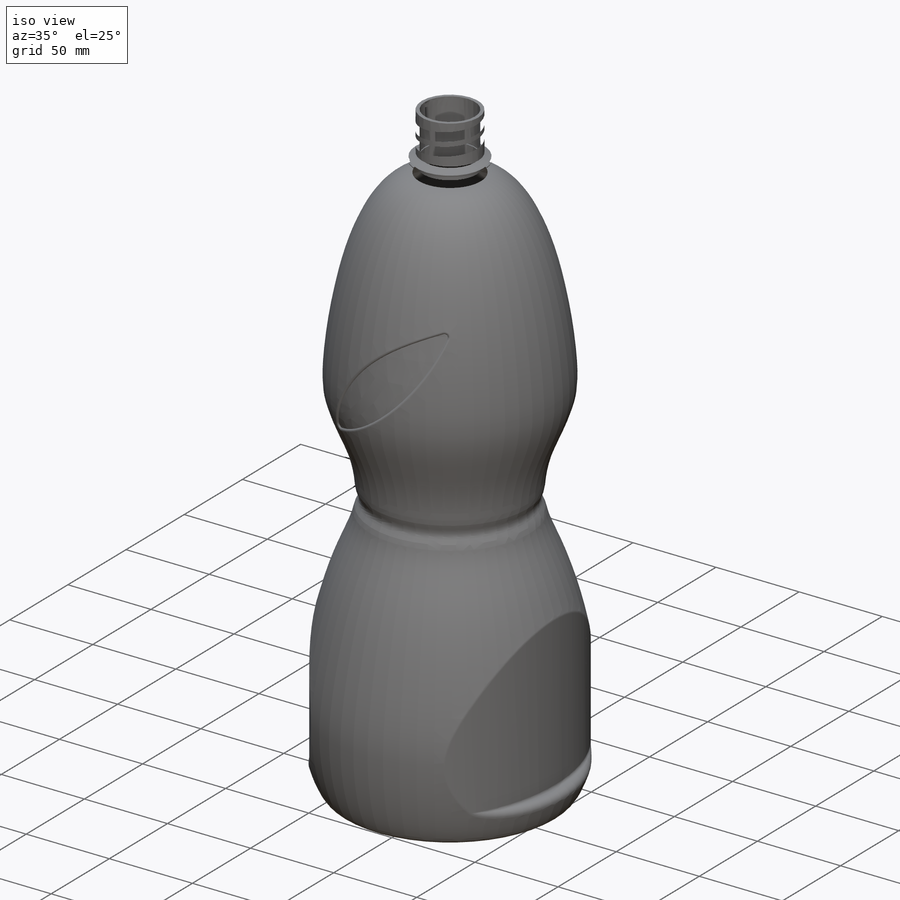
[diagram: iso view]
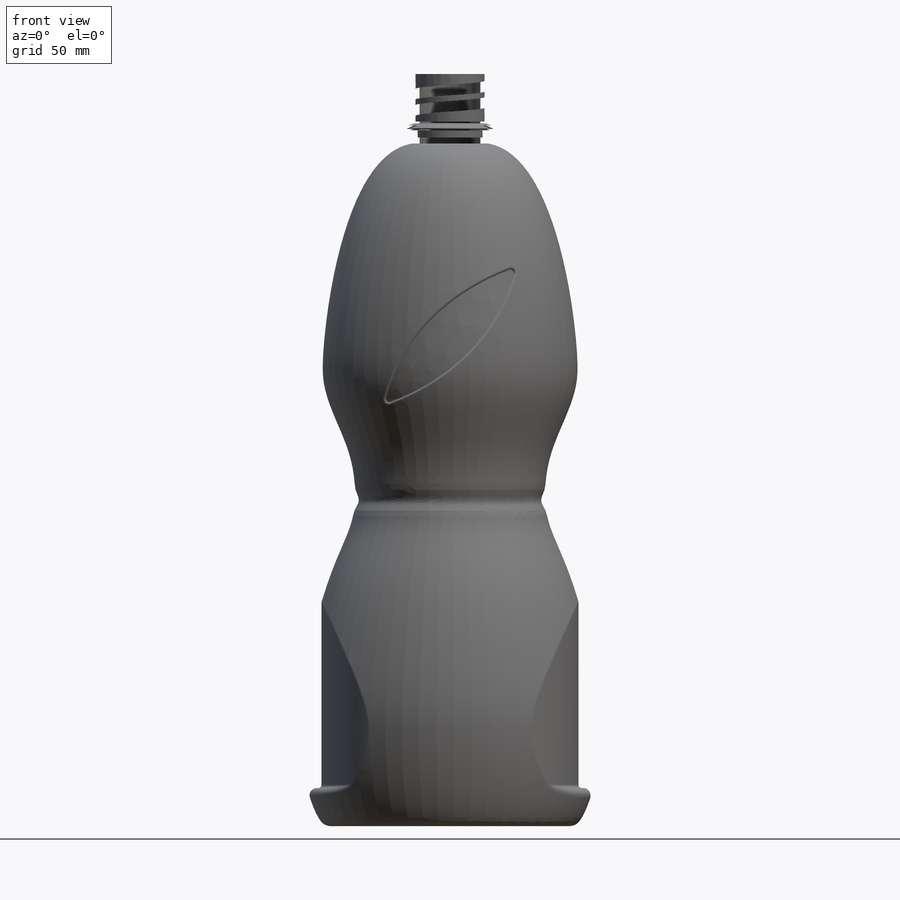
[diagram: front view]
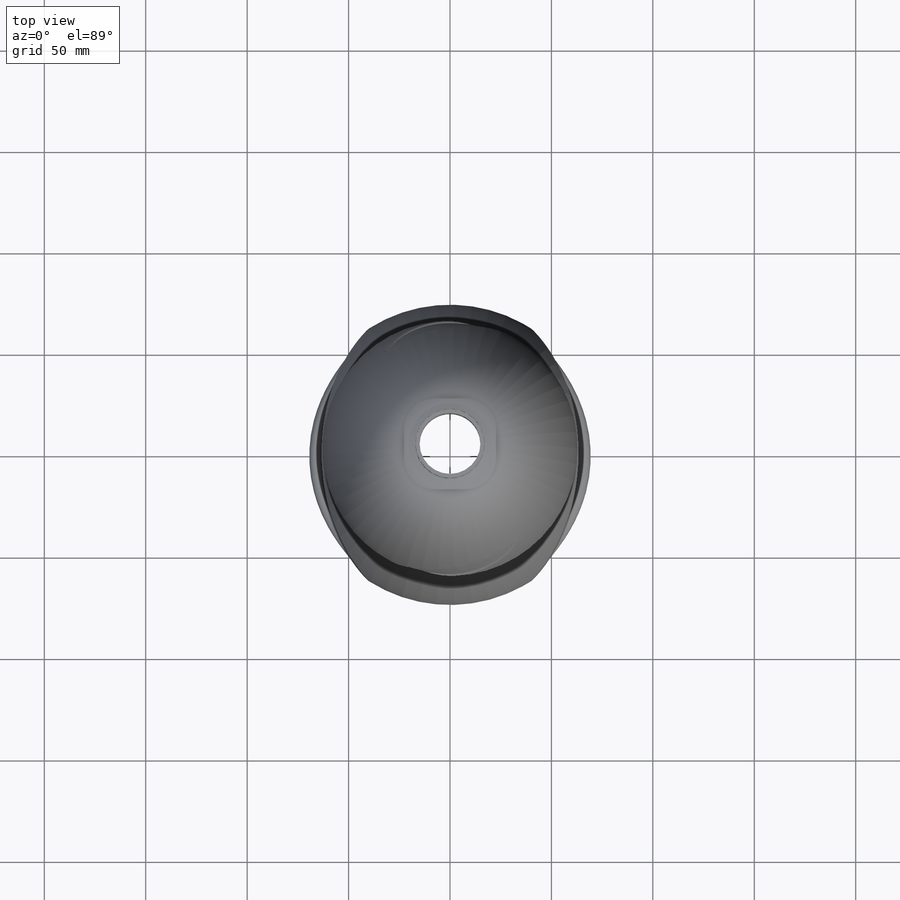
[diagram: top view]
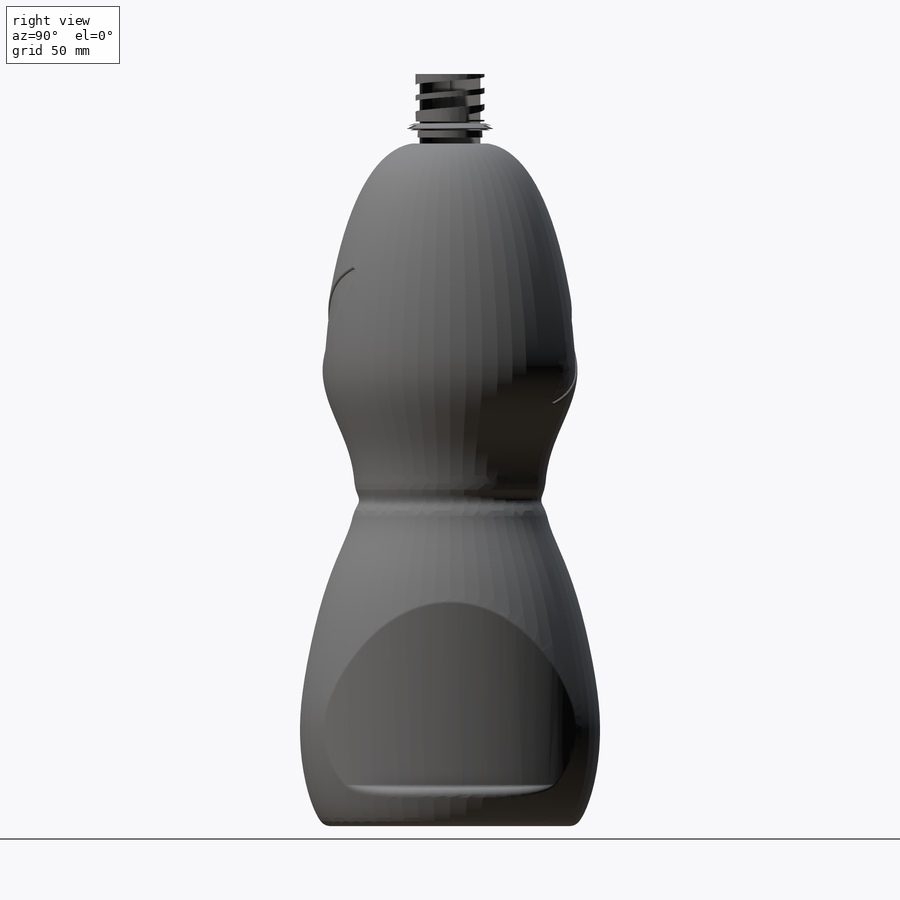
[diagram: right view]
SOLIDWORKS PART (.sldprt)
format: sldprt  version: not decoded by parser v0  size: 1,894,400 bytes
history: native  units: mm
features: sketch x8, fillet x8, plane x4, sweep x2, material x1, revolve x1, dome x1, cut_extrude x1, pattern_circular x1, boolean_combine x1, shell x1, helix x1 (+16 scaffold rows collapsed)
feature tree (46):
  scaffold x16  (default folders/planes/origin — collapsed)
  material  "Nylon 6/10"
  plane  "Plane3"  Offset=160mm
  sketch  "Sketch1"  dims[c1.D1=370.0mm c1.D2=~26.793795mm c2.D2=90.0deg c3.D2=60.0mm c3.D3=35.0mm c3.D4=15.0mm c3.D5=10.0mm c3.D6=0.5mm c3.D7=~1.826698mm c4.D7=70.0deg c4.D8=5.0mm]
  revolve  "Revolve1"  Angle=360deg
  dome  "Dome1"
  plane  "Plane1"  Offset=110mm
  sketch  "Sketch4"
  cut_extrude  "Extrude1"  Depth=93mm
  fillet  "Fillet1"  Radius=2.6mm
  fillet  "Fillet3"  Radius=5mm
  plane  "Plane2"  Offset=90mm
  sketch  "Sketch5"  dims[c1.D2=3.0mm c1.D1=~101.177724mm c2.D1=45.0deg c3.D1=1.0mm]
  fillet  "Fillet4"  Radius=0.25mm
  pattern_circular  "CirPattern5"  Count=2 Angle=180deg
  sketch  "Sketch8"  dims[D1=100.0mm]
  sketch  "Sketch9"  dims[D1=12.0mm]
  sweep  "Sweep1"
  boolean_combine  "Combine1"
  fillet  "Fillet5"  Radius=15mm
  shell  "Shell5"  Thickness=1mm
  fillet  "Fillet6"  Radius=3mm
  sketch  "Sketch10"
  plane  "Plane4"  Offset=368mm
  sketch  "Sketch13"
  helix  "Helix/Spiral2"  Pitch=2mm
  sketch  "Sketch12"  dims[c1.D1=2.0mm c1.D2=~5.941451mm c2.D2=20.0deg c2.D3=~5.908672mm c3.D3=20.0deg c4.D3=~6.301162mm c4.D4=~5.908672mm c5.D3=5.0mm]
  sweep  "Sweep3"  DeleteFace4=0
  fillet  "Fillet7"  Radius=0.5mm
  fillet  "Fillet9"  Radius=0.5mm
  fillet  "Fillet10"  Radius=1mm
decode coverage: 19 of 25 modeling features carry decoded parameters
note: ~ marks probable driven/reference dimensions
note: suppression state not decoded; provenance and decode notes live in map.json
